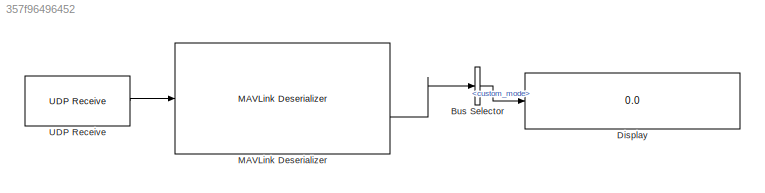
MODEL slx_357f96496452
KIND model
CONFIG AbsTol = auto
CONFIG EnableMultiTasking = off
CONFIG FixedStep = auto
CONFIG MaxStep = auto
CONFIG MinStep = auto
CONFIG RelTol = 1e-3
CONFIG SampleTimeConstraint = Unconstrained
CONFIG SolverName = VariableStepAuto
CONFIG StartTime = 0.0
CONFIG StopTime = inf
BLOCK [BusSelector] Bus Selector
  OutputSignals = Payload.custom_mode
BLOCK [Display] Display
  Decimation = 1
BLOCK [Reference] MAVLink Deserializer  REF=uavmavlinklib/MAVLink Deserializer
  SourceBlock = uavmavlinklib/MAVLink Deserializer
  SourceType = MAVLink Deserializer
BLOCK [Reference] UDP Receive  REF=dspnetwork/UDP Receive
  LibrarySourceBlock = dspsrcs4/UDP Receive
  SourceBlock = dspnetwork/UDP Receive
  SourceType = UDP Receive
LINE Bus Selector:1 -> Display:1
LINE MAVLink Deserializer:2 -> Bus Selector:1
LINE UDP Receive:1 -> MAVLink Deserializer:1
